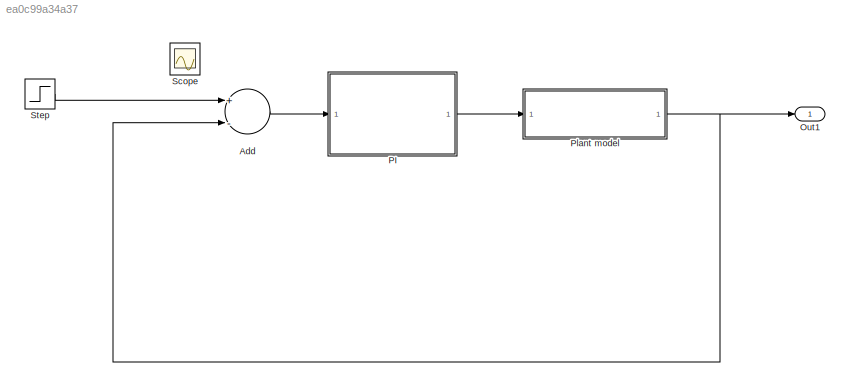
MODEL slx_ea0c99a34a37
KIND model
CONFIG AbsTol = auto
CONFIG FixedStep = auto
CONFIG MaxStep = auto
CONFIG MinStep = auto
CONFIG RelTol = 1e-3
CONFIG SampleTimeConstraint = Unconstrained
CONFIG Solver = VariableStepAuto
CONFIG SolverMode = Auto
CONFIG SolverName = VariableStepAuto
CONFIG StartTime = 0.0
CONFIG StopTime = 10
BLOCK [Sum] Add
  InputSameDT = off
  Inputs = +-
  OutDataTypeStr = Inherit: Inherit via internal rule
  Ports = [2, 1]
  SaturateOnIntegerOverflow = off
BLOCK [Outport] Out1
  IconDisplay = Port number
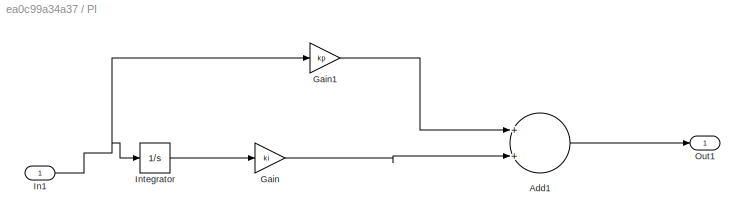
BLOCK [SubSystem] PI 
  Ports = [1, 1]
  RequestExecContextInheritance = off
  Variant = off
BLOCK [Sum] PI /Add1
  InputSameDT = off
  OutDataTypeStr = Inherit: Inherit via internal rule
  Ports = [2, 1]
  SaturateOnIntegerOverflow = off
BLOCK [Gain] PI /Gain
  Gain = ki
  OutDataTypeStr = Inherit: Inherit via internal rule
  ParamDataTypeStr = Inherit: Inherit via internal rule
  SaturateOnIntegerOverflow = off
BLOCK [Gain] PI /Gain1
  Gain = kp
  OutDataTypeStr = Inherit: Inherit via internal rule
  ParamDataTypeStr = Inherit: Inherit via internal rule
  SaturateOnIntegerOverflow = off
BLOCK [Inport] PI /In1
  IconDisplay = Port number
BLOCK [Integrator] PI /Integrator
  Ports = [1, 1]
BLOCK [Outport] PI /Out1
  IconDisplay = Port number
BLOCK [ModelReference] Plant model
  ModelNameDialog = Subsystem.slx
  ModelReferenceVersion = 1.3
  Ports = [1, 1]
  Variant = off
BLOCK [Scope] Scope
  IOType = viewer
  Ports = []
  ScopeSpecificationString = Simulink.scopes.TimeScopeBlockCfg('CurrentConfiguration', extmgr.ConfigurationSet(extmgr.Configuration('Core','General UI',true),extmgr.Configuration('Core','Source UI',true),extmgr.Configuration('Sources','WiredSimulink',true),extmgr.Configuration('Visuals','Time Domain',true,'SerializedDisplays',{struct('MinYLimReal','-65.77262','MaxYLimReal','591.95358','YLabelReal','','MinYLimMag','0.00000','M...<+1361ch>
BLOCK [Step] Step
  After = u
  SampleTime = 0
  Time = 0
LINE Add:1 -> PI :1
LINE PI /Add1:1 -> PI /Out1:1
LINE PI /Gain1:1 -> PI /Add1:1
LINE PI /Gain:1 -> PI /Add1:2
NET PI /In1:1 -> PI /Gain1:1, PI /Integrator:1
LINE PI /Integrator:1 -> PI /Gain:1
LINE PI :1 -> Plant model:1
NET Plant model:1 -> Add:2, Out1:1
LINE Step:1 -> Add:1
note: NET lines group one-source signal fan-out (src -> all destinations, sorted); 1:1 wires keep LINE
